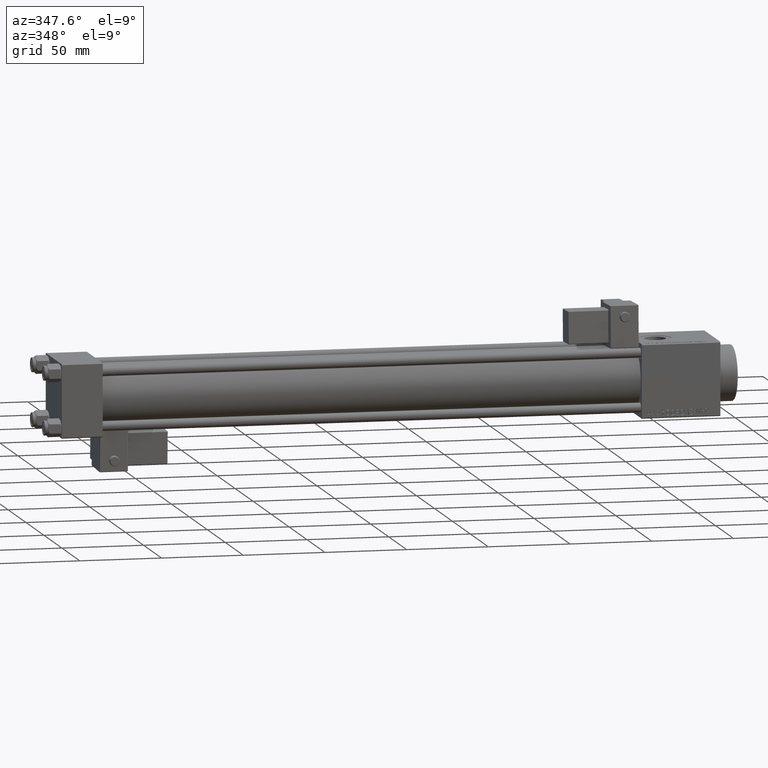
[diagram: clean part render]
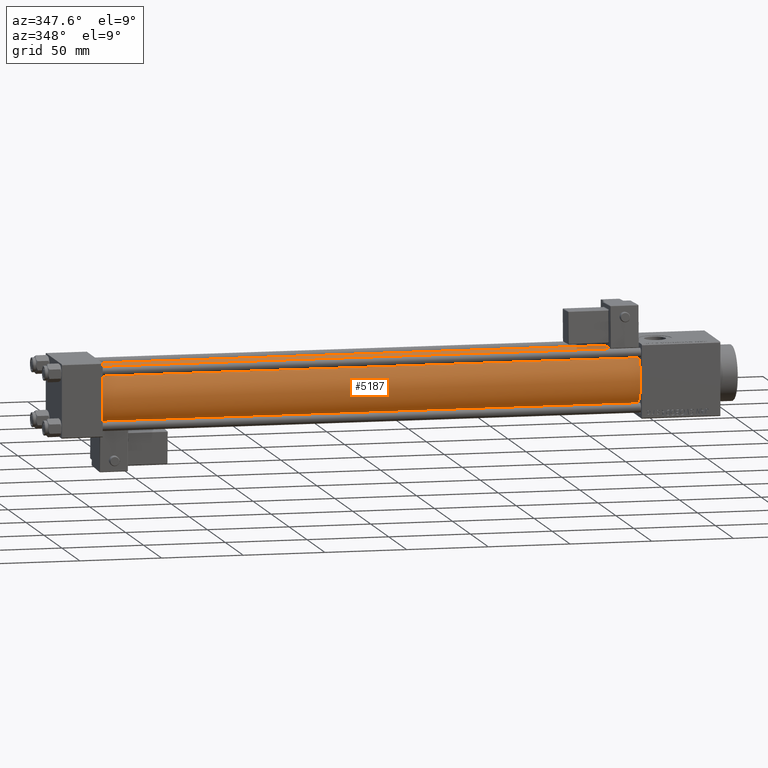
[diagram: same view with one face highlighted and labeled with its STEP entity id]
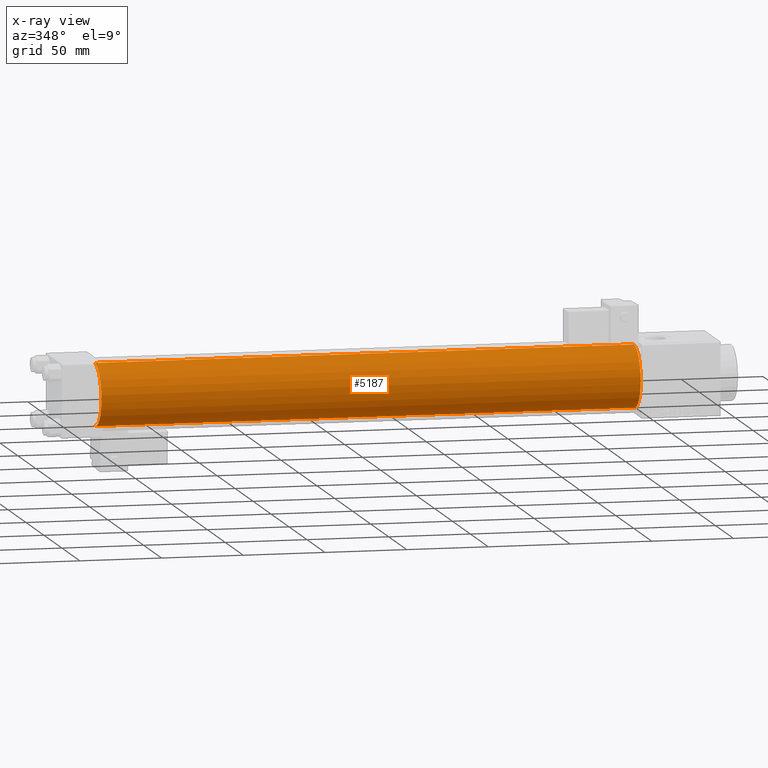
[diagram: x-ray of the same camera — body ghosted, the highlighted face saturated]
A machine part, auxiliary view. The second image highlights one B-rep face of the part: STEP entity #5187.
The next image is the same camera in x-ray: the body ghosted, the highlighted face saturated — about 0% of this face is hidden behind the body in this view.
In plain terms, the highlighted cylindrical surface (edge-blend (fillet) strip) has radius 19 mm, axis along (-1, -0, -0).
Its self-contained STEP definition (entity closure, byte-faithful):
#2735 = EDGE_CURVE ( 'NONE', #4844, #4573, #52069, .T. ) ;
#3992 = EDGE_CURVE ( 'NONE', #4844, #48008, #4966, .T. ) ;
#4210 = CYLINDRICAL_SURFACE ( 'NONE', #44405, 19.00000000000000000 ) ;
#4573 = VERTEX_POINT ( 'NONE', #18043 ) ;
#4844 = VERTEX_POINT ( 'NONE', #46169 ) ;
#4966 = CIRCLE ( 'NONE', #52061, 19.00000000000000000 ) ;
#5187 = ADVANCED_FACE ( 'NONE', ( #44195 ), #4210, .T. ) ;
#5911 = EDGE_CURVE ( 'NONE', #4573, #40987, #50445, .T. ) ;
#7243 = CARTESIAN_POINT ( 'NONE',  ( 25.00000000000002132, -2.752562955852396712E-16, -19.00000000000000000 ) ) ;
#10114 = LINE ( 'NONE', #25953, #29309 ) ;
#13867 = DIRECTION ( 'NONE',  ( 0.000000000000000000, 0.000000000000000000, -1.000000000000000000 ) ) ;
#15572 = CARTESIAN_POINT ( 'NONE',  ( 355.0000000000000568, -2.602085213965210642E-15, 19.00000000000000000 ) ) ;
#18043 = CARTESIAN_POINT ( 'NONE',  ( 25.00000000000002132, -2.602085213965210642E-15, 19.00000000000000000 ) ) ;
#19231 = ORIENTED_EDGE ( 'NONE', *, *, #2735, .T. ) ;
#19516 = DIRECTION ( 'NONE',  ( -1.000000000000000000, -0.000000000000000000, -0.000000000000000000 ) ) ;
#21925 = DIRECTION ( 'NONE',  ( -1.000000000000000000, -0.000000000000000000, -0.000000000000000000 ) ) ;
#22528 = ORIENTED_EDGE ( 'NONE', *, *, #3992, .F. ) ;
#24350 = CARTESIAN_POINT ( 'NONE',  ( 355.0000000000000568, -2.602085213965210642E-15, 0.000000000000000000 ) ) ;
#25574 = EDGE_LOOP ( 'NONE', ( #30967, #22528, #19231, #29913 ) ) ;
#25953 = CARTESIAN_POINT ( 'NONE',  ( 355.0000000000000568, -2.752562955852396712E-16, -19.00000000000000000 ) ) ;
#27404 = DIRECTION ( 'NONE',  ( -1.000000000000000000, -0.000000000000000000, -0.000000000000000000 ) ) ;
#29309 = VECTOR ( 'NONE', #21925, 1000.000000000000000 ) ;
#29913 = ORIENTED_EDGE ( 'NONE', *, *, #5911, .T. ) ;
#30967 = ORIENTED_EDGE ( 'NONE', *, *, #37982, .F. ) ;
#31078 = DIRECTION ( 'NONE',  ( 0.000000000000000000, 0.000000000000000000, 1.000000000000000000 ) ) ;
#33755 = CARTESIAN_POINT ( 'NONE',  ( 355.0000000000000568, -2.602085213965210642E-15, 0.000000000000000000 ) ) ;
#37982 = EDGE_CURVE ( 'NONE', #48008, #40987, #10114, .T. ) ;
#39577 = CARTESIAN_POINT ( 'NONE',  ( 355.0000000000000568, -2.752562955852396712E-16, -19.00000000000000000 ) ) ;
#40424 = DIRECTION ( 'NONE',  ( 0.000000000000000000, 0.000000000000000000, 1.000000000000000000 ) ) ;
#40987 = VERTEX_POINT ( 'NONE', #7243 ) ;
#42578 = DIRECTION ( 'NONE',  ( 1.000000000000000000, 0.000000000000000000, 0.000000000000000000 ) ) ;
#43148 = DIRECTION ( 'NONE',  ( 1.000000000000000000, -0.000000000000000000, 0.000000000000000000 ) ) ;
#44195 = FACE_OUTER_BOUND ( 'NONE', #25574, .T. ) ;
#44334 = VECTOR ( 'NONE', #27404, 1000.000000000000000 ) ;
#44405 = AXIS2_PLACEMENT_3D ( 'NONE', #24350, #19516, #40424 ) ;
#46169 = CARTESIAN_POINT ( 'NONE',  ( 355.0000000000000568, -2.602085213965210642E-15, 19.00000000000000000 ) ) ;
#46906 = CARTESIAN_POINT ( 'NONE',  ( 25.00000000000002132, -2.602085213965210642E-15, 0.000000000000000000 ) ) ;
#48008 = VERTEX_POINT ( 'NONE', #39577 ) ;
#50445 = CIRCLE ( 'NONE', #51298, 19.00000000000000000 ) ;
#51298 = AXIS2_PLACEMENT_3D ( 'NONE', #46906, #43148, #31078 ) ;
#52061 = AXIS2_PLACEMENT_3D ( 'NONE', #33755, #42578, #13867 ) ;
#52069 = LINE ( 'NONE', #15572, #44334 ) ;